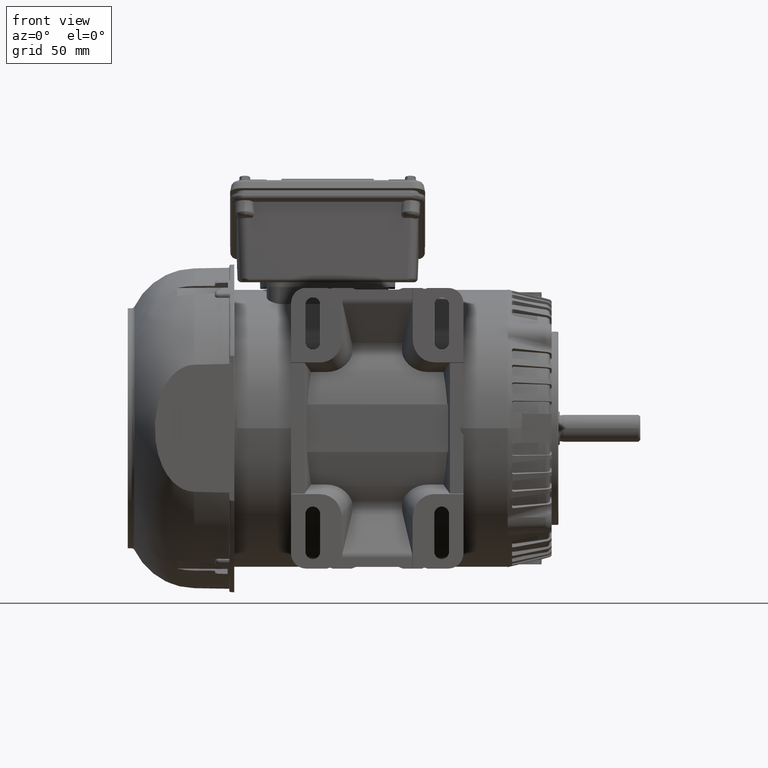
[diagram: clean part render]
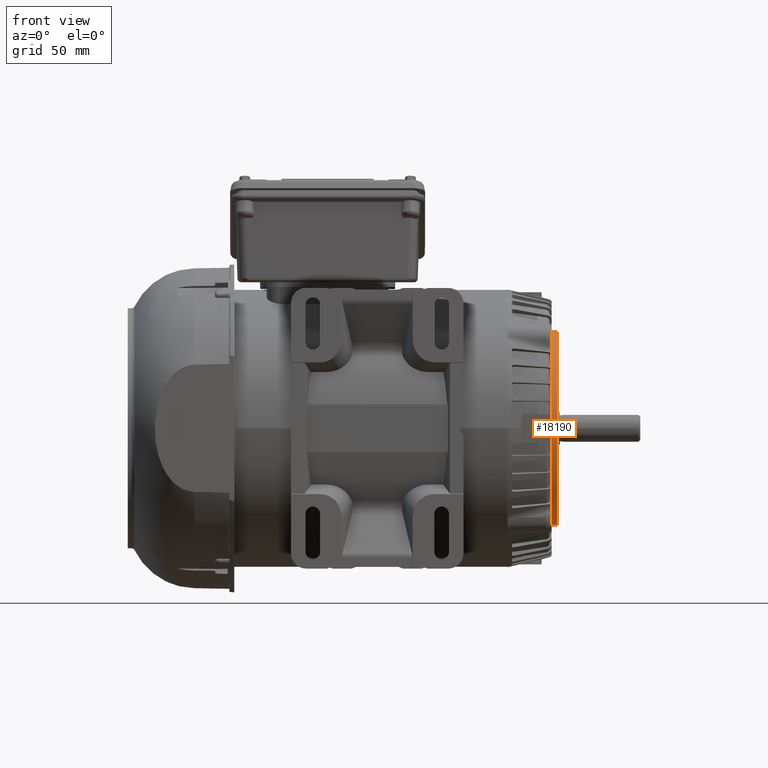
[diagram: same view with one face highlighted and labeled with its STEP entity id]
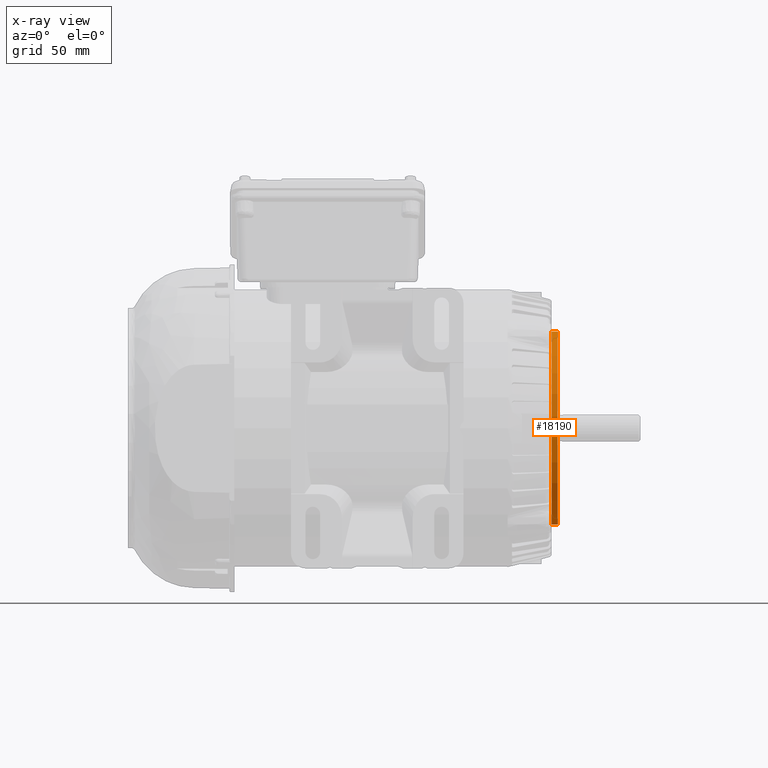
[diagram: x-ray of the same camera — body ghosted, the highlighted face saturated]
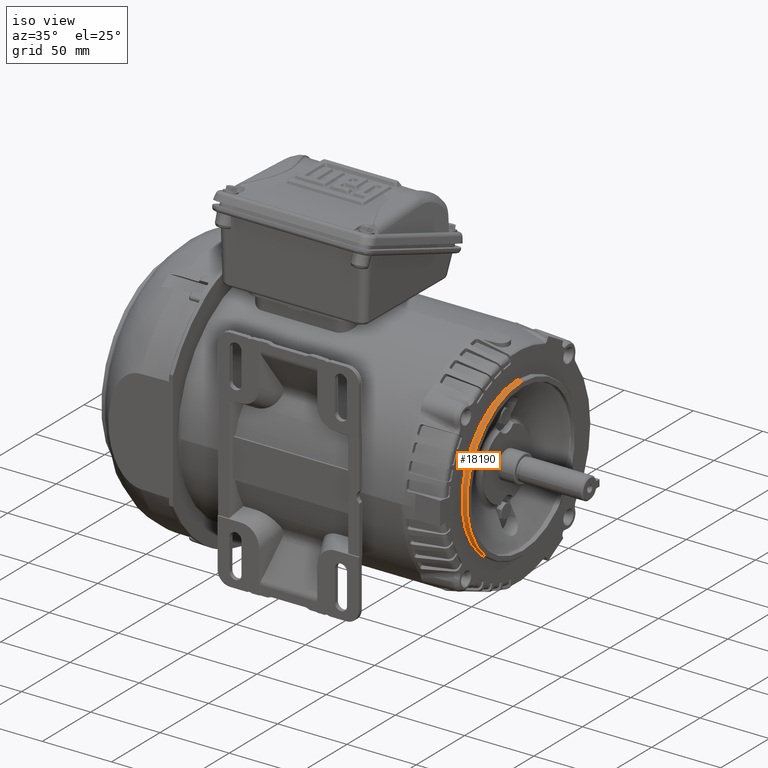
[diagram: same view with one face highlighted and labeled with its STEP entity id]
A machine part, front view. The second image highlights one B-rep face of the part: STEP entity #18190.
The next image is the same camera in x-ray: the body ghosted, the highlighted face saturated — about 0% of this face is hidden behind the body in this view.
A second angle (iso view) of the same face is appended — the face is thin or edge-on in the first view.
In plain terms, the highlighted cylindrical surface (partial cylindrical patch) has radius 57.15 mm, axis along (-1, 0, 0).
Its self-contained STEP definition (entity closure, byte-faithful):
#444 = FACE_OUTER_BOUND ( 'NONE', #2222, .T. ) ;
#2222 = EDGE_LOOP ( 'NONE', ( #18658, #25501, #4242, #7923 ) ) ;
#2731 = CIRCLE ( 'NONE', #39983, 2.250000000000000000 ) ;
#2845 = VERTEX_POINT ( 'NONE', #20950 ) ;
#3616 = DIRECTION ( 'NONE',  ( 0.000000000000000000, 0.000000000000000000, 1.000000000000000000 ) ) ;
#3950 = CYLINDRICAL_SURFACE ( 'NONE', #38529, 2.250000000000000000 ) ;
#4242 = ORIENTED_EDGE ( 'NONE', *, *, #18457, .T. ) ;
#4325 = VERTEX_POINT ( 'NONE', #31147 ) ;
#7059 = AXIS2_PLACEMENT_3D ( 'NONE', #49402, #52910, #45598 ) ;
#7404 = EDGE_CURVE ( 'NONE', #51700, #30175, #32159, .T. ) ;
#7923 = ORIENTED_EDGE ( 'NONE', *, *, #38261, .F. ) ;
#7982 = LINE ( 'NONE', #41604, #22337 ) ;
#12563 = CARTESIAN_POINT ( 'NONE',  ( 4.778086649001535235, -0.2466438790074921283, 2.250000000000028866 ) ) ;
#16981 = EDGE_CURVE ( 'NONE', #51700, #2845, #7982, .T. ) ;
#17144 = CARTESIAN_POINT ( 'NONE',  ( 5.545803184434606514, -0.2466438790074918508, -2.249999999999971134 ) ) ;
#18190 = ADVANCED_FACE ( 'NONE', ( #444 ), #3950, .T. ) ;
#18457 = EDGE_CURVE ( 'NONE', #30175, #4325, #41333, .T. ) ;
#18658 = ORIENTED_EDGE ( 'NONE', *, *, #16981, .F. ) ;
#18908 = CARTESIAN_POINT ( 'NONE',  ( 5.408007908844055578, -0.2466438790074921283, 2.898961162089067626E-14 ) ) ;
#20520 = DIRECTION ( 'NONE',  ( 0.000000000000000000, 0.000000000000000000, 1.000000000000000000 ) ) ;
#20950 = CARTESIAN_POINT ( 'NONE',  ( 5.408007908844055578, -0.2466438790074918508, -2.249999999999971134 ) ) ;
#22337 = VECTOR ( 'NONE', #46199, 39.37007874015748143 ) ;
#24492 = DIRECTION ( 'NONE',  ( -1.000000000000000000, 0.000000000000000000, 0.000000000000000000 ) ) ;
#25501 = ORIENTED_EDGE ( 'NONE', *, *, #7404, .T. ) ;
#30175 = VERTEX_POINT ( 'NONE', #39279 ) ;
#31147 = CARTESIAN_POINT ( 'NONE',  ( 5.408007908844055578, -0.2466438790074921283, 2.250000000000028866 ) ) ;
#32159 = CIRCLE ( 'NONE', #7059, 2.250000000000000000 ) ;
#33507 = DIRECTION ( 'NONE',  ( -1.000000000000000000, 0.000000000000000000, 0.000000000000000000 ) ) ;
#38261 = EDGE_CURVE ( 'NONE', #2845, #4325, #2731, .T. ) ;
#38529 = AXIS2_PLACEMENT_3D ( 'NONE', #41917, #33507, #20520 ) ;
#39279 = CARTESIAN_POINT ( 'NONE',  ( 5.545803184434606514, -0.2466438790074921283, 2.250000000000028866 ) ) ;
#39983 = AXIS2_PLACEMENT_3D ( 'NONE', #18908, #24492, #3616 ) ;
#41333 = LINE ( 'NONE', #12563, #51494 ) ;
#41604 = CARTESIAN_POINT ( 'NONE',  ( 4.778086649001535235, -0.2466438790074918508, -2.249999999999971134 ) ) ;
#41917 = CARTESIAN_POINT ( 'NONE',  ( 4.778086649001535235, -0.2466438790074921283, 2.898961162089067626E-14 ) ) ;
#45598 = DIRECTION ( 'NONE',  ( 0.000000000000000000, 0.000000000000000000, 1.000000000000000000 ) ) ;
#46199 = DIRECTION ( 'NONE',  ( -1.000000000000000000, 0.000000000000000000, 0.000000000000000000 ) ) ;
#49402 = CARTESIAN_POINT ( 'NONE',  ( 5.545803184434606514, -0.2466438790074921283, 2.898961162089067626E-14 ) ) ;
#51494 = VECTOR ( 'NONE', #53523, 39.37007874015748143 ) ;
#51700 = VERTEX_POINT ( 'NONE', #17144 ) ;
#52910 = DIRECTION ( 'NONE',  ( -1.000000000000000000, 0.000000000000000000, 0.000000000000000000 ) ) ;
#53523 = DIRECTION ( 'NONE',  ( -1.000000000000000000, 0.000000000000000000, 0.000000000000000000 ) ) ;